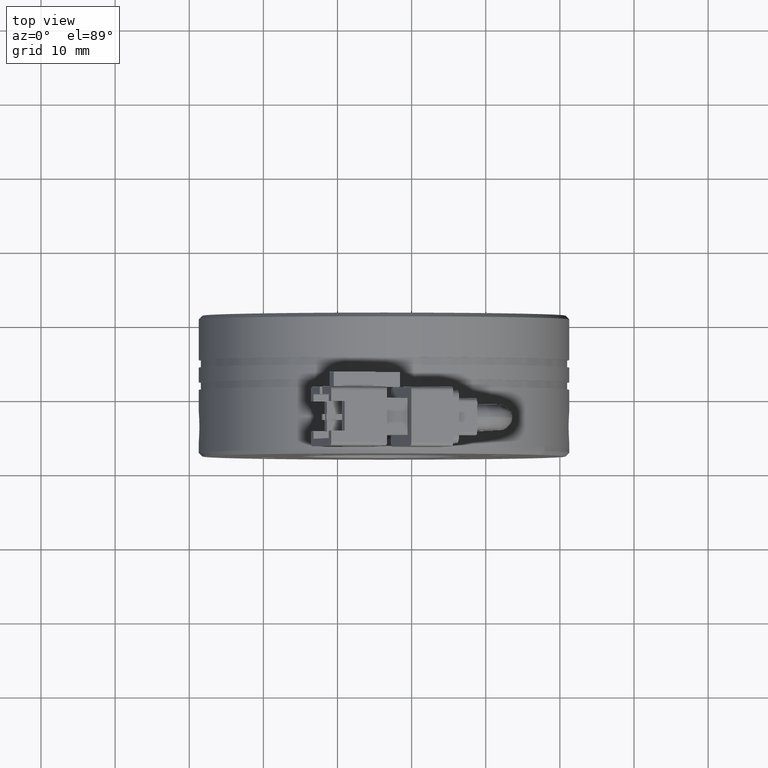
[diagram: clean part render]
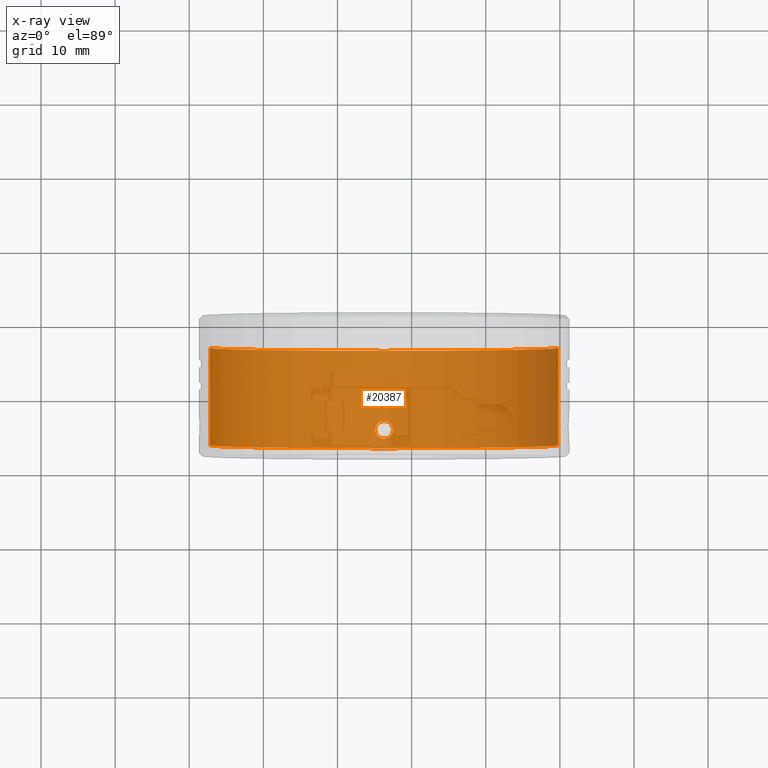
[diagram: x-ray — body ghosted, one internal face saturated and labeled with its STEP entity id]
A machine part, top view, then the same camera in x-ray: the body is ghosted and one INTERNAL B-rep face — a face not visible from any outside direction — is saturated and labeled: STEP entity #20387.
In plain terms, the highlighted cylindrical surface (partial cylindrical patch) has radius 23.5 mm, axis along (-0, 1, -0).
Its self-contained STEP definition (entity closure, byte-faithful):
#52 = CARTESIAN_POINT ( 'NONE',  ( -70.24568441233255100, 5.389970849347161400, -0.9594175871689084600 ) ) ;
#316 = CARTESIAN_POINT ( 'NONE',  ( -92.52635228848824100, 6.127531206657422100, -23.46934170359279600 ) ) ;
#1509 = EDGE_CURVE ( 'NONE', #30307, #33548, #34222, .T. ) ;
#1595 = ORIENTED_EDGE ( 'NONE', *, *, #22480, .F. ) ;
#2150 = CARTESIAN_POINT ( 'NONE',  ( -117.2263522884882400, 3.627531206657425700, 2.906277393448951200E-015 ) ) ;
#2218 = CARTESIAN_POINT ( 'NONE',  ( -117.2263522884882300, 4.927531206657425500, 1.487927585237400600E-029 ) ) ;
#2379 = CARTESIAN_POINT ( 'NONE',  ( -117.2030349682191600, 5.523019486833152100, -1.048316736395401100 ) ) ;
#2429 = CARTESIAN_POINT ( 'NONE',  ( -70.22635228848822900, 24.01734612509121900, 2.877919977996280300E-015 ) ) ;
#3441 = ORIENTED_EDGE ( 'NONE', *, *, #38457, .F. ) ;
#4048 = CARTESIAN_POINT ( 'NONE',  ( -70.23368564043339300, 5.079214519232675900, -0.6045118168779820600 ) ) ;
#4070 = EDGE_CURVE ( 'NONE', #35879, #28154, #44602, .T. ) ;
#4393 = CARTESIAN_POINT ( 'NONE',  ( -117.2263522884882300, 7.327531206657412500, -1.972152263052529500E-028 ) ) ;
#4504 = CARTESIAN_POINT ( 'NONE',  ( -70.22635228848822900, 4.927531206657431700, 2.877919977996460600E-015 ) ) ;
#5367 = EDGE_CURVE ( 'NONE', #26380, #30120, #33374, .T. ) ;
#6374 = CARTESIAN_POINT ( 'NONE',  ( -92.55757400432222000, 6.441693768686905100, -23.47099470686603300 ) ) ;
#6411 = CARTESIAN_POINT ( 'NONE',  ( -117.1956939920810300, 5.969038711593016800, -1.199999999999911100 ) ) ;
#7892 = CIRCLE ( 'NONE', #47253, 23.50000000000000700 ) ;
#8067 = CARTESIAN_POINT ( 'NONE',  ( -70.22635228848822900, 4.927531206657398900, -0.1584924912453062300 ) ) ;
#8129 = CIRCLE ( 'NONE', #16567, 23.50000000000000700 ) ;
#8316 = B_SPLINE_CURVE_WITH_KNOTS ( 'NONE', 3,
 ( #2218, #14191, #45618, #22088, #49440, #26094, #2379, #30089, #6411, #33989 ),
 .UNSPECIFIED., .F., .F.,
 ( 4, 2, 2, 2, 4 ),
 ( 2.102443818765147500E-018, 0.0004687238019175268900, 0.0009374476038350516200, 0.001406171405752577100, 0.001874895207670102200 ),
 .UNSPECIFIED. ) ;
#8618 = CARTESIAN_POINT ( 'NONE',  ( -92.67802512403667900, 6.732304675976314100, -23.47668301450492500 ) ) ;
#9069 = CARTESIAN_POINT ( 'NONE',  ( -70.25701058489544000, 6.127531206657424800, -1.200000000000239500 ) ) ;
#9525 = LINE ( 'NONE', #2429, #30473 ) ;
#9630 = B_SPLINE_CURVE_WITH_KNOTS ( 'NONE', 3,
 ( #15792, #19758, #47180, #23732, #52, #27730, #4048, #31699, #8067, #35620 ),
 .UNSPECIFIED., .F., .F.,
 ( 4, 2, 2, 2, 4 ),
 ( 0.001874895207670434100, 0.002343619967947029700, 0.002812344728223625100, 0.003281069488500220500, 0.003749794248776815900 ),
 .UNSPECIFIED. ) ;
#9885 = CARTESIAN_POINT ( 'NONE',  ( -117.2263522884882400, 16.78530919654421900, 2.877919977996280700E-015 ) ) ;
#11131 = CYLINDRICAL_SURFACE ( 'NONE', #49917, 23.50000000000000700 ) ;
#11746 = ORIENTED_EDGE ( 'NONE', *, *, #20041, .F. ) ;
#12069 = DIRECTION ( 'NONE',  ( -1.224646799147351700E-016, 1.000000000000000000, -0.0000000000000000000 ) ) ;
#12127 = CARTESIAN_POINT ( 'NONE',  ( -117.2263522884882400, 24.01734612509121200, 0.0000000000000000000 ) ) ;
#12705 = EDGE_LOOP ( 'NONE', ( #25673, #22745, #21667, #18525, #17490, #14265, #13383, #11746, #1595, #3441 ) ) ;
#12862 = CARTESIAN_POINT ( 'NONE',  ( -94.92635228848823200, 6.127531206657421200, -23.46934170359279600 ) ) ;
#12984 = CARTESIAN_POINT ( 'NONE',  ( -70.25701058489544000, 6.127531206657424800, -1.200000000000239500 ) ) ;
#13072 = CARTESIAN_POINT ( 'NONE',  ( -70.25532678927531500, 6.443510255537303200, -1.168143672619650100 ) ) ;
#13140 = CARTESIAN_POINT ( 'NONE',  ( -70.24966960875733000, 6.732042926481792500, -1.048316736395676000 ) ) ;
#13151 = CARTESIAN_POINT ( 'NONE',  ( -70.24566273494380700, 6.865769635415026600, -0.9588959344438681100 ) ) ;
#13184 = CARTESIAN_POINT ( 'NONE',  ( -70.23766846281611700, 7.086948701888709400, -0.7375604793042350700 ) ) ;
#13249 = CARTESIAN_POINT ( 'NONE',  ( -70.23367957471472800, 7.175998536877893100, -0.6045118918369504200 ) ) ;
#13310 = CARTESIAN_POINT ( 'NONE',  ( -70.22635228848822900, 7.327531206657418700, 2.877919977996100100E-015 ) ) ;
#13383 = ORIENTED_EDGE ( 'NONE', *, *, #4070, .F. ) ;
#13479 = CARTESIAN_POINT ( 'NONE',  ( -70.22635228848824300, 7.327531206657450700, -0.1584928137568513100 ) ) ;
#13702 = CARTESIAN_POINT ( 'NONE',  ( -70.22800120942261500, 7.296340832339169900, -0.3140102368163921200 ) ) ;
#13766 = VECTOR ( 'NONE', #31630, 1000.000000000000000 ) ;
#14191 = CARTESIAN_POINT ( 'NONE',  ( -117.2263522884882600, 4.927531206657435300, -0.1584928137568281900 ) ) ;
#14265 = ORIENTED_EDGE ( 'NONE', *, *, #46567, .F. ) ;
#14539 = VECTOR ( 'NONE', #39127, 1000.000000000000000 ) ;
#14639 = CARTESIAN_POINT ( 'NONE',  ( -93.72635228848822900, 16.78530919654422200, 0.0000000000000000000 ) ) ;
#14641 = CARTESIAN_POINT ( 'NONE',  ( -92.52635228848834000, 6.286099322760179600, -23.46934170359280000 ) ) ;
#14901 = CARTESIAN_POINT ( 'NONE',  ( -117.1956939920810300, 6.127531206657418600, -1.199999999999910900 ) ) ;
#15006 = LINE ( 'NONE', #31989, #13766 ) ;
#15629 = CARTESIAN_POINT ( 'NONE',  ( -117.2263522884882400, 24.01734612509121200, 0.0000000000000000000 ) ) ;
#15757 = B_SPLINE_CURVE_WITH_KNOTS ( 'NONE', 3,
 ( #37648, #37650, #37261, #37157, #37148, #37085, #36046, #36984, #36981, #36919, #36862, #36821, #36816, #36677, #36634, #36519, #36474, #36396 ),
 .UNSPECIFIED., .F., .F.,
 ( 4, 2, 2, 2, 2, 2, 2, 2, 4 ),
 ( 0.0000000000000000000, 0.0004689464760253244400, 0.0009378929520506488900, 0.001406839428075973300, 0.001875785904101297800, 0.002344732380126622400, 0.002813678856151946700, 0.003282625332177270900, 0.003751571808202595500 ),
 .UNSPECIFIED. ) ;
#15792 = CARTESIAN_POINT ( 'NONE',  ( -70.25701058489544000, 6.127531206657424800, -1.200000000000239500 ) ) ;
#16201 = B_SPLINE_CURVE_WITH_KNOTS ( 'NONE', 3,
 ( #40443, #40671, #40627, #40375, #40310, #40194, #40129, #40092, #40086, #40023 ),
 .UNSPECIFIED., .F., .F.,
 ( 4, 2, 2, 2, 4 ),
 ( 0.001874895207670102200, 0.002343619967946616000, 0.002812344728223129800, 0.003281069488499643700, 0.003749794248776157500 ),
 .UNSPECIFIED. ) ;
#16567 = AXIS2_PLACEMENT_3D ( 'NONE', #27911, #20056, #19829 ) ;
#17368 = CARTESIAN_POINT ( 'NONE',  ( -117.2263522884882300, 4.927531206657425500, 1.487927585237400600E-029 ) ) ;
#17490 = ORIENTED_EDGE ( 'NONE', *, *, #26193, .T. ) ;
#18373 = CARTESIAN_POINT ( 'NONE',  ( -70.22635228848822900, 16.78530919654422600, 0.0000000000000000000 ) ) ;
#18525 = ORIENTED_EDGE ( 'NONE', *, *, #1509, .F. ) ;
#18572 = DIRECTION ( 'NONE',  ( -1.000000000000000000, -1.476360405086643800E-016, 0.0000000000000000000 ) ) ;
#19002 = CARTESIAN_POINT ( 'NONE',  ( -70.22635228848822900, 3.627531206657431900, -2.258754526011502900E-018 ) ) ;
#19384 = EDGE_CURVE ( 'NONE', #24686, #28208, #8129, .T. ) ;
#19758 = CARTESIAN_POINT ( 'NONE',  ( -70.25701058489544000, 5.969038387537105800, -1.200000000000239800 ) ) ;
#19829 = DIRECTION ( 'NONE',  ( -1.000000000000000000, -1.291815354450813400E-016, 0.0000000000000000000 ) ) ;
#20041 = EDGE_CURVE ( 'NONE', #34724, #35879, #16201, .T. ) ;
#20056 = DIRECTION ( 'NONE',  ( -1.224646799147351700E-016, 1.000000000000000000, -0.0000000000000000000 ) ) ;
#20164 = EDGE_CURVE ( 'NONE', #30120, #26380, #15757, .T. ) ;
#20387 = ADVANCED_FACE ( 'NONE', ( #24604, #27856 ), #11131, .F. ) ;
#21658 = EDGE_CURVE ( 'NONE', #33548, #36463, #9630, .T. ) ;
#21667 = ORIENTED_EDGE ( 'NONE', *, *, #21658, .F. ) ;
#22088 = CARTESIAN_POINT ( 'NONE',  ( -117.2190250022617000, 5.079063876437064800, -0.6045118918368167500 ) ) ;
#22480 = EDGE_CURVE ( 'NONE', #28104, #34724, #8316, .T. ) ;
#22745 = ORIENTED_EDGE ( 'NONE', *, *, #50904, .T. ) ;
#23149 = CARTESIAN_POINT ( 'NONE',  ( -70.25701058489545400, 6.286023701721856800, -1.200000000000239500 ) ) ;
#23732 = CARTESIAN_POINT ( 'NONE',  ( -70.24967567545289200, 5.523019413830928300, -1.048467379871584400 ) ) ;
#24604 = FACE_BOUND ( 'NONE', #34281, .T. ) ;
#24686 = VERTEX_POINT ( 'NONE', #19002 ) ;
#25673 = ORIENTED_EDGE ( 'NONE', *, *, #19384, .F. ) ;
#26094 = CARTESIAN_POINT ( 'NONE',  ( -117.2070418420326500, 5.389292777899932200, -0.9588959344436245300 ) ) ;
#26193 = EDGE_CURVE ( 'NONE', #30307, #37342, #9525, .T. ) ;
#26380 = VERTEX_POINT ( 'NONE', #316 ) ;
#26405 = ORIENTED_EDGE ( 'NONE', *, *, #5367, .F. ) ;
#27371 = ORIENTED_EDGE ( 'NONE', *, *, #20164, .F. ) ;
#27730 = CARTESIAN_POINT ( 'NONE',  ( -70.23769013340701400, 5.168635380255253200, -0.7382385666930709700 ) ) ;
#27856 = FACE_OUTER_BOUND ( 'NONE', #12705, .T. ) ;
#27911 = CARTESIAN_POINT ( 'NONE',  ( -93.72635228848822900, 3.627531206657428800, 0.0000000000000000000 ) ) ;
#28104 = VERTEX_POINT ( 'NONE', #17368 ) ;
#28154 = VERTEX_POINT ( 'NONE', #9885 ) ;
#28208 = VERTEX_POINT ( 'NONE', #2150 ) ;
#30089 = CARTESIAN_POINT ( 'NONE',  ( -117.1973777877011900, 5.811552157777597900, -1.168143672619332800 ) ) ;
#30120 = VERTEX_POINT ( 'NONE', #12862 ) ;
#30307 = VERTEX_POINT ( 'NONE', #33880 ) ;
#30473 = VECTOR ( 'NONE', #49481, 1000.000000000000000 ) ;
#30720 = CARTESIAN_POINT ( 'NONE',  ( -94.03935775770718000, 7.296608931998145300, -23.49836474768571300 ) ) ;
#31630 = DIRECTION ( 'NONE',  ( -1.224646799147351700E-016, 1.000000000000000000, -0.0000000000000000000 ) ) ;
#31699 = CARTESIAN_POINT ( 'NONE',  ( -70.22803366770975200, 4.959387532219611900, -0.3159790653652507800 ) ) ;
#31989 = CARTESIAN_POINT ( 'NONE',  ( -70.22635228848822900, 24.01734612509121900, 2.877919977996280300E-015 ) ) ;
#32430 = DIRECTION ( 'NONE',  ( -1.000000000000000000, -1.476360405086643800E-016, 0.0000000000000000000 ) ) ;
#32988 = VECTOR ( 'NONE', #12069, 1000.000000000000000 ) ;
#33015 = DIRECTION ( 'NONE',  ( -1.224646799147351700E-016, 1.000000000000000000, -0.0000000000000000000 ) ) ;
#33022 = CARTESIAN_POINT ( 'NONE',  ( -93.72635228848822900, 24.01734612509121500, 0.0000000000000000000 ) ) ;
#33374 = B_SPLINE_CURVE_WITH_KNOTS ( 'NONE', 3,
 ( #49077, #14641, #6374, #8618, #48992, #48888, #47988, #48209, #48160, #48224, #30720, #44669, #44619, #44578, #44569, #44503, #44446, #47128 ),
 .UNSPECIFIED., .F., .F.,
 ( 4, 2, 2, 2, 2, 2, 2, 2, 4 ),
 ( 0.003751571808202595500, 0.004220518608907716300, 0.004689465409612837000, 0.005158412210317958600, 0.005627359011023078500, 0.006096305811728200100, 0.006565252612433320800, 0.007034199413138441500, 0.007503146213843562200 ),
 .UNSPECIFIED. ) ;
#33548 = VERTEX_POINT ( 'NONE', #9069 ) ;
#33880 = CARTESIAN_POINT ( 'NONE',  ( -70.22635228848822900, 7.327531206657418700, 2.877919977996100100E-015 ) ) ;
#33989 = CARTESIAN_POINT ( 'NONE',  ( -117.1956939920810300, 6.127531206657418600, -1.199999999999910900 ) ) ;
#34222 = B_SPLINE_CURVE_WITH_KNOTS ( 'NONE', 3,
 ( #13310, #13479, #13702, #13249, #13184, #13151, #13140, #13072, #23149, #12984 ),
 .UNSPECIFIED., .F., .F.,
 ( 4, 2, 2, 2, 4 ),
 ( 2.806702024536074400E-021, 0.0004687238019176085300, 0.0009374476038352170700, 0.001406171405752825500, 0.001874895207670434100 ),
 .UNSPECIFIED. ) ;
#34281 = EDGE_LOOP ( 'NONE', ( #27371, #26405 ) ) ;
#34724 = VERTEX_POINT ( 'NONE', #14901 ) ;
#35620 = CARTESIAN_POINT ( 'NONE',  ( -70.22635228848822900, 4.927531206657431700, 2.877919977996460600E-015 ) ) ;
#35879 = VERTEX_POINT ( 'NONE', #4393 ) ;
#36046 = CARTESIAN_POINT ( 'NONE',  ( -94.33034890149778600, 5.078906564495665200, -23.49268052419925100 ) ) ;
#36396 = CARTESIAN_POINT ( 'NONE',  ( -92.52635228848824100, 6.127531206657422100, -23.46934170359279600 ) ) ;
#36463 = VERTEX_POINT ( 'NONE', #4504 ) ;
#36474 = CARTESIAN_POINT ( 'NONE',  ( -92.52635228848814100, 5.968963200341976400, -23.46934170359280000 ) ) ;
#36519 = CARTESIAN_POINT ( 'NONE',  ( -92.55764167313351700, 5.813072478533595000, -23.47099828520095600 ) ) ;
#36634 = CARTESIAN_POINT ( 'NONE',  ( -92.67825506393188600, 5.522336195100542100, -23.47669348980444000 ) ) ;
#36677 = CARTESIAN_POINT ( 'NONE',  ( -92.76635646491273200, 5.390310025290054900, -23.48065131060275200 ) ) ;
#36816 = CARTESIAN_POINT ( 'NONE',  ( -92.99051334207588600, 5.166475486898195700, -23.48874451724348600 ) ) ;
#36821 = CARTESIAN_POINT ( 'NONE',  ( -93.12275977818036700, 5.078535861982799400, -23.49269661661980600 ) ) ;
#36862 = CARTESIAN_POINT ( 'NONE',  ( -93.41334681926930700, 4.958453481316702500, -23.49836474768571300 ) ) ;
#36919 = CARTESIAN_POINT ( 'NONE',  ( -93.57064420649742000, 4.927424354009106700, -23.50000545630416900 ) ) ;
#36981 = CARTESIAN_POINT ( 'NONE',  ( -93.88370300668091800, 4.927638621442001800, -23.49999451499100900 ) ) ;
#36984 = CARTESIAN_POINT ( 'NONE',  ( -94.04161272719740300, 4.959183482535530100, -23.49832889752806900 ) ) ;
#37085 = CARTESIAN_POINT ( 'NONE',  ( -94.46418425551843300, 5.168310903423362700, -23.48867536120525700 ) ) ;
#37148 = CARTESIAN_POINT ( 'NONE',  ( -94.68554589669294300, 5.389664535986304900, -23.48067745738272900 ) ) ;
#37157 = CARTESIAN_POINT ( 'NONE',  ( -94.77467945293975000, 5.522757737338537300, -23.47668301450492500 ) ) ;
#37261 = CARTESIAN_POINT ( 'NONE',  ( -94.89513057265425300, 5.813368644627938200, -23.47099470686603300 ) ) ;
#37342 = VERTEX_POINT ( 'NONE', #18373 ) ;
#37648 = CARTESIAN_POINT ( 'NONE',  ( -94.92635228848823200, 6.127531206657421200, -23.46934170359279600 ) ) ;
#37650 = CARTESIAN_POINT ( 'NONE',  ( -94.92635228848820400, 5.968963090555246400, -23.46934170359279300 ) ) ;
#38457 = EDGE_CURVE ( 'NONE', #28208, #28104, #44677, .T. ) ;
#39127 = DIRECTION ( 'NONE',  ( -1.224646799147351700E-016, 1.000000000000000000, -0.0000000000000000000 ) ) ;
#40023 = CARTESIAN_POINT ( 'NONE',  ( -117.2263522884882300, 7.327531206657412500, -1.972152263052529500E-028 ) ) ;
#40086 = CARTESIAN_POINT ( 'NONE',  ( -117.2263522884882400, 7.327531206657441000, -0.1584924912449848500 ) ) ;
#40092 = CARTESIAN_POINT ( 'NONE',  ( -117.2246709092666900, 7.295674881095159500, -0.3159790653651863800 ) ) ;
#40129 = CARTESIAN_POINT ( 'NONE',  ( -117.2190189365430800, 7.175847894082054700, -0.6045118168778429400 ) ) ;
#40194 = CARTESIAN_POINT ( 'NONE',  ( -117.2150144435694700, 7.086427033059473900, -0.7382385666928919000 ) ) ;
#40310 = CARTESIAN_POINT ( 'NONE',  ( -117.2070201646439400, 6.865091563967570900, -0.9594175871686626600 ) ) ;
#40375 = CARTESIAN_POINT ( 'NONE',  ( -117.2030289015235800, 6.732042999483815600, -1.048467379871308200 ) ) ;
#40443 = CARTESIAN_POINT ( 'NONE',  ( -117.1956939920810300, 6.127531206657418600, -1.199999999999910900 ) ) ;
#40627 = CARTESIAN_POINT ( 'NONE',  ( -117.1973452948721500, 6.441541429973464800, -1.168809622638938800 ) ) ;
#40671 = CARTESIAN_POINT ( 'NONE',  ( -117.1956939920810200, 6.286024025777710900, -1.199999999999910500 ) ) ;
#42195 = DIRECTION ( 'NONE',  ( 1.224646799147351700E-016, -1.000000000000000000, 0.0000000000000000000 ) ) ;
#44446 = CARTESIAN_POINT ( 'NONE',  ( -94.92635228848824600, 6.286099432545824200, -23.46934170359280000 ) ) ;
#44503 = CARTESIAN_POINT ( 'NONE',  ( -94.89506290384297000, 6.441989934781243000, -23.47099828520095200 ) ) ;
#44569 = CARTESIAN_POINT ( 'NONE',  ( -94.77444951304458700, 6.732726218214312800, -23.47669348980444000 ) ) ;
#44578 = CARTESIAN_POINT ( 'NONE',  ( -94.68634811206376900, 6.864752388024787600, -23.48065131060275600 ) ) ;
#44602 = LINE ( 'NONE', #12127, #32988 ) ;
#44619 = CARTESIAN_POINT ( 'NONE',  ( -94.46219123490060100, 7.088586926416633500, -23.48874451724348200 ) ) ;
#44669 = CARTESIAN_POINT ( 'NONE',  ( -94.32994479879609200, 7.176526551332052000, -23.49269661661981300 ) ) ;
#44677 = LINE ( 'NONE', #15629, #14539 ) ;
#45618 = CARTESIAN_POINT ( 'NONE',  ( -117.2247033675538600, 4.958721580975749900, -0.3140102368163331100 ) ) ;
#46567 = EDGE_CURVE ( 'NONE', #28154, #37342, #7892, .T. ) ;
#47128 = CARTESIAN_POINT ( 'NONE',  ( -94.92635228848823200, 6.127531206657421200, -23.46934170359279600 ) ) ;
#47180 = CARTESIAN_POINT ( 'NONE',  ( -70.25535928210436500, 5.813520983341323500, -1.168809622639256400 ) ) ;
#47253 = AXIS2_PLACEMENT_3D ( 'NONE', #14639, #42195, #18572 ) ;
#47988 = CARTESIAN_POINT ( 'NONE',  ( -93.12235567547868700, 7.176155848819189700, -23.49268052419925100 ) ) ;
#48160 = CARTESIAN_POINT ( 'NONE',  ( -93.56900157029559800, 7.327423791872844200, -23.49999451499100900 ) ) ;
#48209 = CARTESIAN_POINT ( 'NONE',  ( -93.41109184977908300, 7.295878930779317700, -23.49832889752806900 ) ) ;
#48224 = CARTESIAN_POINT ( 'NONE',  ( -93.88206037047903900, 7.327638059305735800, -23.50000545630417600 ) ) ;
#48888 = CARTESIAN_POINT ( 'NONE',  ( -92.98852032145808300, 7.086751509891494800, -23.48867536120525700 ) ) ;
#48992 = CARTESIAN_POINT ( 'NONE',  ( -92.76715868028351500, 6.865397877328550900, -23.48067745738272900 ) ) ;
#49077 = CARTESIAN_POINT ( 'NONE',  ( -92.52635228848824100, 6.127531206657422100, -23.46934170359279600 ) ) ;
#49440 = CARTESIAN_POINT ( 'NONE',  ( -117.2150361141603300, 5.168113711426256500, -0.7375604793040598800 ) ) ;
#49481 = DIRECTION ( 'NONE',  ( -1.224646799147351700E-016, 1.000000000000000000, -0.0000000000000000000 ) ) ;
#49917 = AXIS2_PLACEMENT_3D ( 'NONE', #33022, #33015, #32430 ) ;
#50904 = EDGE_CURVE ( 'NONE', #24686, #36463, #15006, .T. ) ;